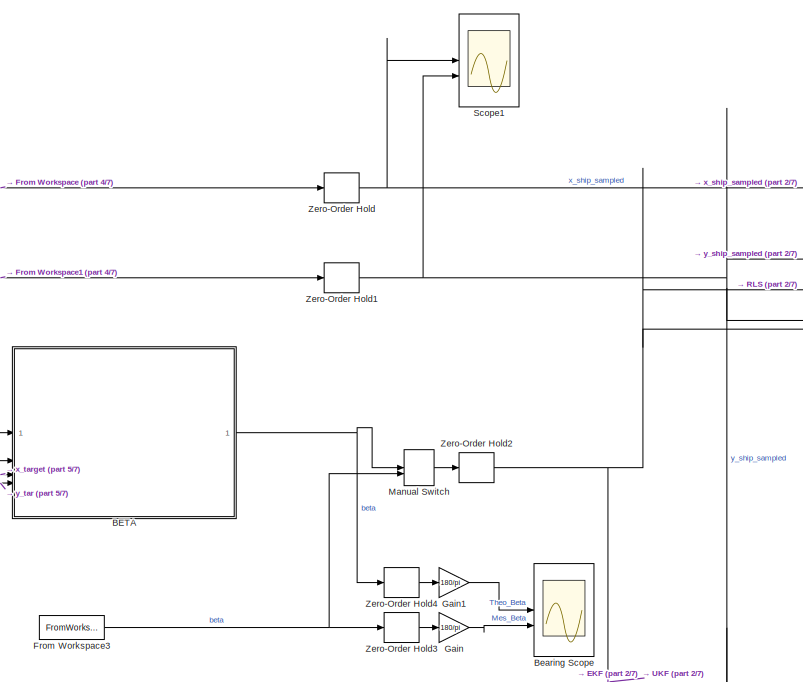
[diagram: root canvas - part 1/7, top center region]
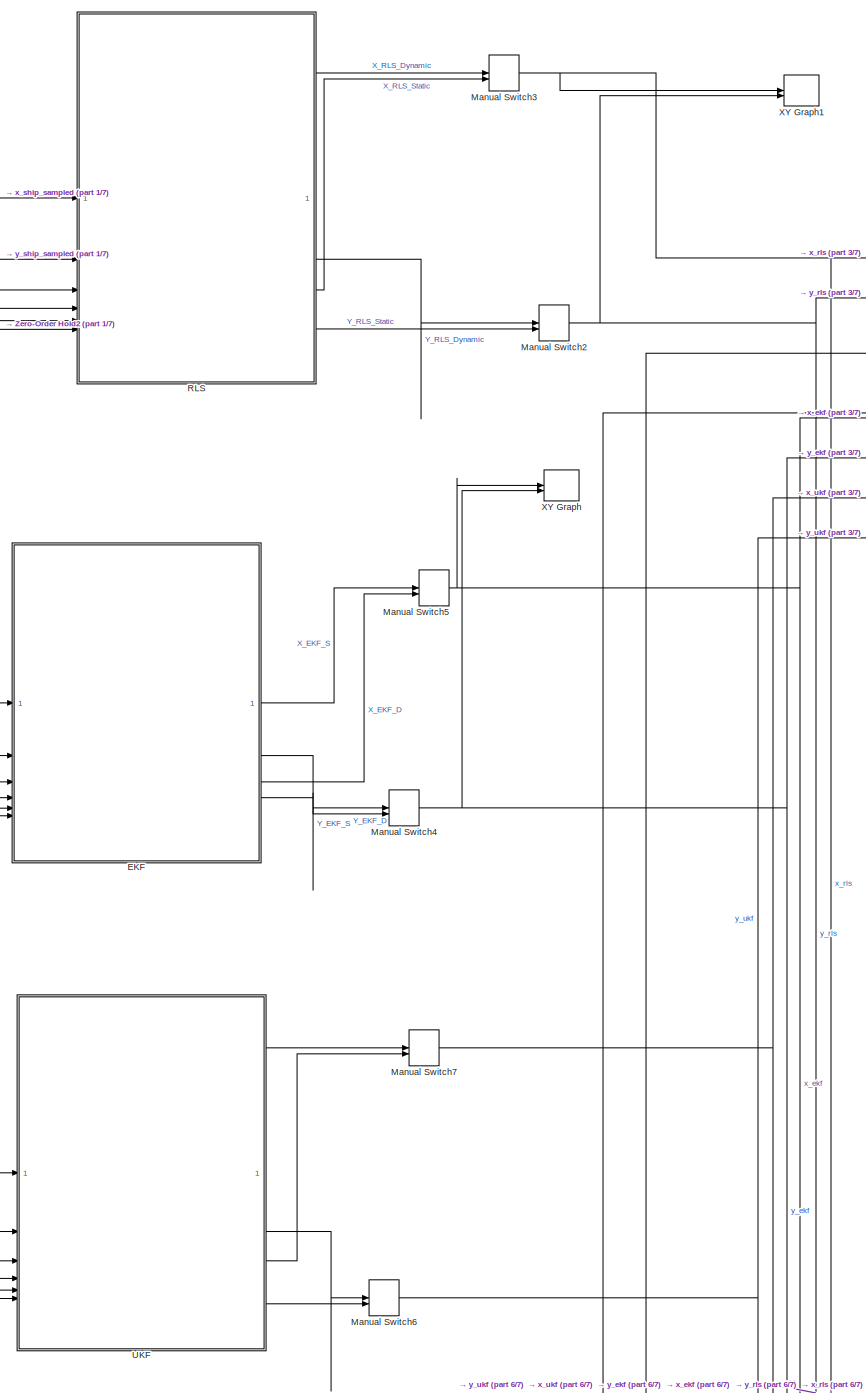
[diagram: root canvas - part 2/7, center side, full height]
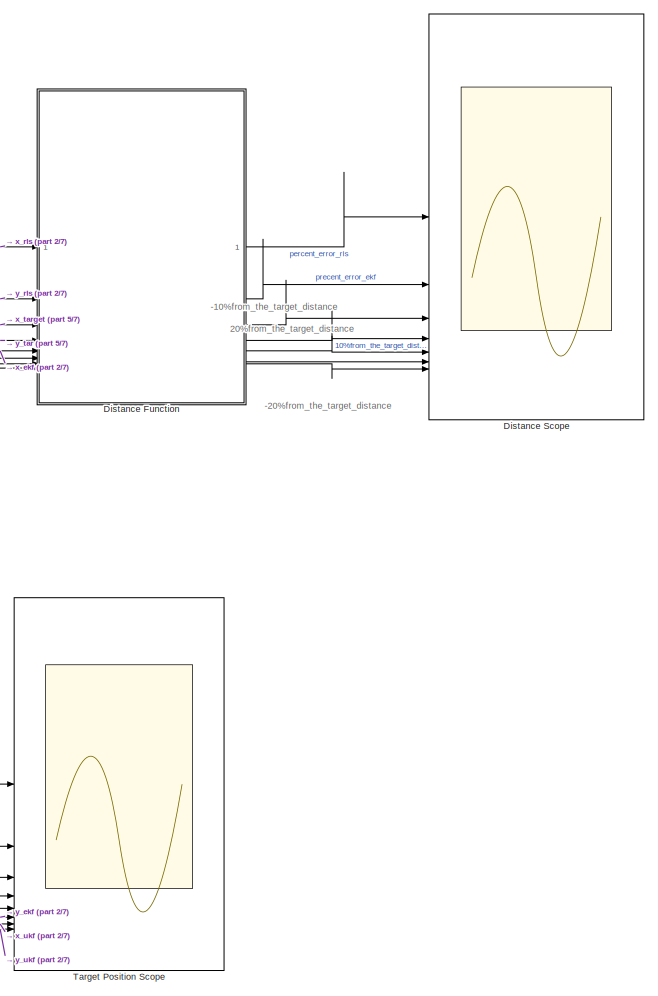
[diagram: root canvas - part 3/7, middle right region]
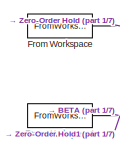
[diagram: root canvas - part 4/7, top left region]
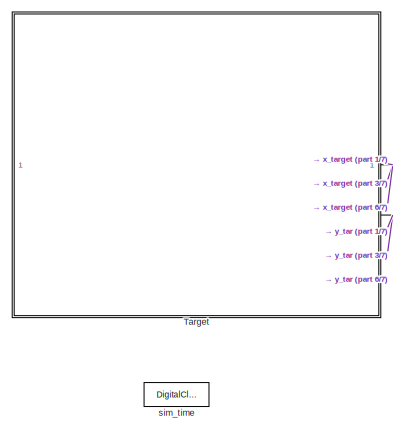
[diagram: root canvas - part 5/7, middle left region]
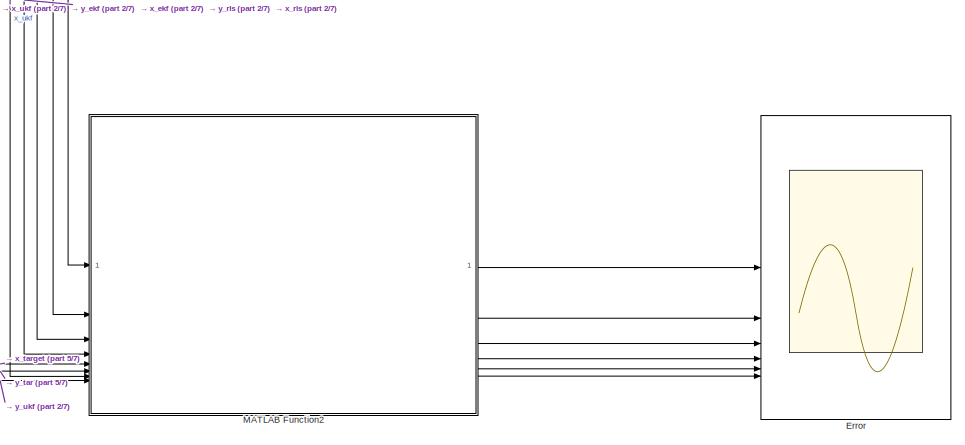
[diagram: root canvas - part 6/7, bottom right region]
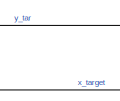
[diagram: root canvas - part 7/7, bottom center region]
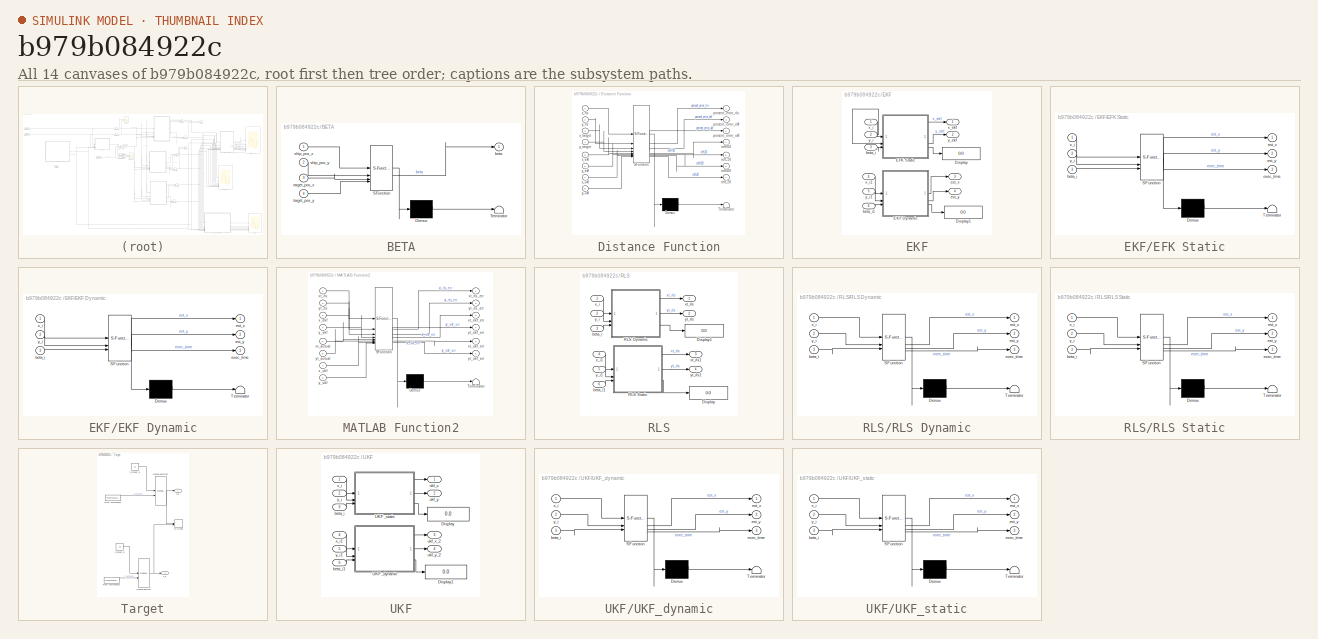
[diagram: thumbnail index - all 14 canvases of the model, root first then tree order]
MODEL slx_b979b084922c
KIND model
CONFIG AbsTol = auto
CONFIG EnableMultiTasking = off
CONFIG FixedStep = auto
CONFIG InitFcn = dt=1;
CONFIG MaxStep = auto
CONFIG MinStep = auto
CONFIG RelTol = 1e-3
CONFIG SampleTimeConstraint = Unconstrained
CONFIG SolverName = VariableStepAuto
CONFIG StartTime = 0.0
CONFIG StopTime = 300
BLOCK [Scope]  Bearing Scope
  Floating = off
  NumInputPorts = 2
  ScopeSpecificationString = Simulink.scopes.TimeScopeBlockCfg('CurrentConfiguration', extmgr.ConfigurationSet(extmgr.Configuration('Core','General UI',true),extmgr.Configuration('Core','Source UI',true),extmgr.Configuration('Sources','WiredSimulink',true,'DataLoggingVariableName','ScopeData1','SampleTime','dt'),extmgr.Configuration('Visuals','Time Domain',true,'SerializedDisplays',{struct('MinYLimReal','-306454.75815','MaxYL...<+1784ch>
BLOCK [Scope]  Scope1
  Floating = off
  NumInputPorts = 2
  ScopeSpecificationString = Simulink.scopes.TimeScopeBlockCfg('CurrentConfiguration', extmgr.ConfigurationSet(extmgr.Configuration('Core','General UI',true),extmgr.Configuration('Core','Source UI',true),extmgr.Configuration('Sources','WiredSimulink',true,'DataLoggingVariableName','ScopeData1','SampleTime','dt'),extmgr.Configuration('Visuals','Time Domain',true,'SerializedDisplays',{struct('MinYLimReal','-4.77533','MaxYLimRea...<+1757ch>
BLOCK [SubSystem] BETA
  ErrorFcn = Stateflow.Translate.translate
  PermitHierarchicalResolution = ExplicitOnly
  SFBlockType = MATLAB Function
  TreatAsAtomicUnit = on
BLOCK [Demux] BETA/ Demux 
  Outputs = 1
BLOCK [S-Function] BETA/ SFunction 
  EnableBusSupport = on
  FunctionName = sf_sfun
  PortCounts = [4 2]
  SFcnIsStateOwnerBlock = off
  SFunctionDeploymentMode = off
  Tag = Stateflow S-Function 5
BLOCK [Terminator] BETA/ Terminator 
BLOCK [Outport] BETA/beta
BLOCK [Inport] BETA/ship_pos_x
BLOCK [Inport] BETA/ship_pos_y
  Port = 2
BLOCK [Inport] BETA/target_pos_x
  Port = 3
BLOCK [Inport] BETA/target_pos_y
  Port = 4
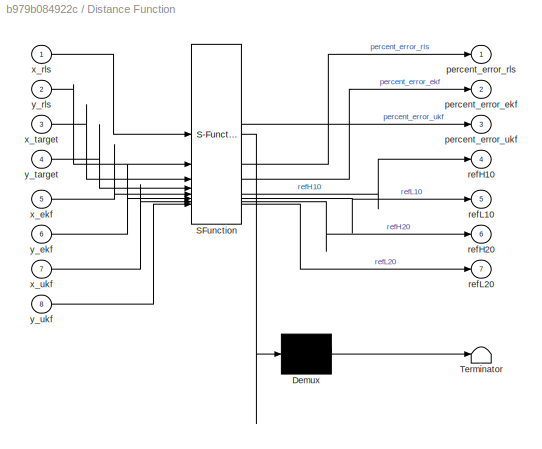
BLOCK [SubSystem] Distance Function
  ErrorFcn = Stateflow.Translate.translate
  PermitHierarchicalResolution = ExplicitOnly
  SFBlockType = MATLAB Function
  TreatAsAtomicUnit = on
BLOCK [Demux] Distance Function/ Demux 
  Outputs = 1
BLOCK [S-Function] Distance Function/ SFunction 
  EnableBusSupport = on
  FunctionName = sf_sfun
  PortCounts = [8 8]
  SFcnIsStateOwnerBlock = off
  SFunctionDeploymentMode = off
  Tag = Stateflow S-Function 10
BLOCK [Terminator] Distance Function/ Terminator 
BLOCK [Outport] Distance Function/percent_error_ekf
  Port = 2
BLOCK [Outport] Distance Function/percent_error_rls
BLOCK [Outport] Distance Function/percent_error_ukf
  Port = 3
BLOCK [Outport] Distance Function/refH10
  Port = 4
BLOCK [Outport] Distance Function/refH20
  Port = 6
BLOCK [Outport] Distance Function/refL10
  Port = 5
BLOCK [Outport] Distance Function/refL20
  Port = 7
BLOCK [Inport] Distance Function/x_ekf
  Port = 5
BLOCK [Inport] Distance Function/x_rls
BLOCK [Inport] Distance Function/x_target
  Port = 3
BLOCK [Inport] Distance Function/x_ukf
  Port = 7
BLOCK [Inport] Distance Function/y_ekf
  Port = 6
BLOCK [Inport] Distance Function/y_rls
  Port = 2
BLOCK [Inport] Distance Function/y_target
  Port = 4
BLOCK [Inport] Distance Function/y_ukf
  Port = 8
BLOCK [Scope] Distance Scope
  Floating = off
  NumInputPorts = 7
  ScopeSpecificationString = Simulink.scopes.TimeScopeBlockCfg('CurrentConfiguration', extmgr.ConfigurationSet(extmgr.Configuration('Core','General UI',true,'FigureColor',[1 1 1]),extmgr.Configuration('Core','Source UI',true),extmgr.Configuration('Sources','WiredSimulink',true,'DataLoggingVariableName','ScopeData1'),extmgr.Configuration('Visuals','Time Domain',true,'SerializedDisplays',{struct('MinYLimReal','-31.4524','MaxYLi...<+2185ch>
BLOCK [SubSystem] EKF
BLOCK [Display] EKF/Display
  Decimation = 1
BLOCK [Display] EKF/Display1
  Decimation = 1
BLOCK [SubSystem] EKF/EFK Static
  ErrorFcn = Stateflow.Translate.translate
  PermitHierarchicalResolution = ExplicitOnly
  SFBlockType = MATLAB Function
  TreatAsAtomicUnit = on
BLOCK [Demux] EKF/EFK Static/ Demux 
  Outputs = 1
BLOCK [S-Function] EKF/EFK Static/ SFunction 
  EnableBusSupport = on
  FunctionName = sf_sfun
  PortCounts = [3 4]
  SFcnIsStateOwnerBlock = off
  SFunctionDeploymentMode = off
  Tag = Stateflow S-Function 6
BLOCK [Terminator] EKF/EFK Static/ Terminator 
BLOCK [Inport] EKF/EFK Static/beta_i
  Port = 3
BLOCK [Outport] EKF/EFK Static/est_x
BLOCK [Outport] EKF/EFK Static/est_y
  Port = 2
BLOCK [Outport] EKF/EFK Static/exec_time
  Port = 3
BLOCK [Inport] EKF/EFK Static/x_i
BLOCK [Inport] EKF/EFK Static/y_i
  Port = 2
BLOCK [SubSystem] EKF/EKF Dynamic
  ErrorFcn = Stateflow.Translate.translate
  PermitHierarchicalResolution = ExplicitOnly
  SFBlockType = MATLAB Function
  TreatAsAtomicUnit = on
BLOCK [Demux] EKF/EKF Dynamic/ Demux 
  Outputs = 1
BLOCK [S-Function] EKF/EKF Dynamic/ SFunction 
  EnableBusSupport = on
  FunctionName = sf_sfun
  PortCounts = [3 4]
  SFcnIsStateOwnerBlock = off
  SFunctionDeploymentMode = off
  Tag = Stateflow S-Function 7
BLOCK [Terminator] EKF/EKF Dynamic/ Terminator 
BLOCK [Inport] EKF/EKF Dynamic/beta_i
  Port = 3
BLOCK [Outport] EKF/EKF Dynamic/est_x
BLOCK [Outport] EKF/EKF Dynamic/est_y
  Port = 2
BLOCK [Outport] EKF/EKF Dynamic/exec_time
  Port = 3
BLOCK [Inport] EKF/EKF Dynamic/x_i
BLOCK [Inport] EKF/EKF Dynamic/y_i
  Port = 2
BLOCK [Inport] EKF/beta_i
  Port = 3
BLOCK [Inport] EKF/beta_i1
  Port = 6
BLOCK [Outport] EKF/est_x
  Port = 3
BLOCK [Outport] EKF/est_y
  Port = 4
BLOCK [Outport] EKF/x_ekf
BLOCK [Inport] EKF/x_i
BLOCK [Inport] EKF/x_i1
  Port = 4
BLOCK [Outport] EKF/y_ekf
  Port = 2
BLOCK [Inport] EKF/y_i
  Port = 2
BLOCK [Inport] EKF/y_i1
  Port = 5
BLOCK [Scope] Error
  Description = error
  Floating = off
  NumInputPorts = 6
  ScopeSpecificationString = Simulink.scopes.TimeScopeBlockCfg('CurrentConfiguration', extmgr.ConfigurationSet(extmgr.Configuration('Core','General UI',true),extmgr.Configuration('Core','Source UI',true),extmgr.Configuration('Sources','WiredSimulink',true,'DataLoggingVariableName','ScopeData2'),extmgr.Configuration('Visuals','Time Domain',true,'SerializedDisplays',{struct('MinYLimReal','-133.62571','MaxYLimReal','67.21279','Y...<+1824ch>
BLOCK [FromWorkspace] From Workspace
  SampleTime = 0.001
  VariableName = TT_X_inf
BLOCK [FromWorkspace] From Workspace1
  SampleTime = 0.001
  VariableName = TT_Y_inf
BLOCK [FromWorkspace] From Workspace3
  VariableName = TT_Bearing_Inf_Scaled
BLOCK [Gain] Gain
  Gain = 180/pi
BLOCK [Gain] Gain1
  Gain = 180/pi
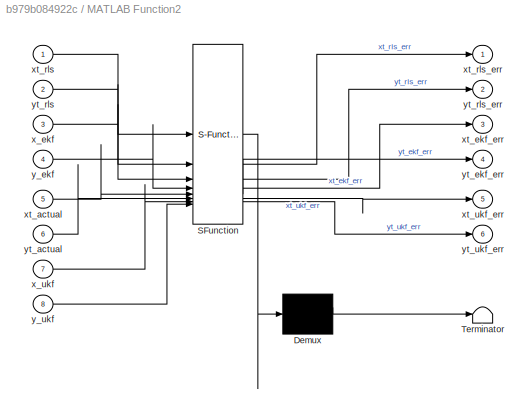
BLOCK [SubSystem] MATLAB Function2
  ErrorFcn = Stateflow.Translate.translate
  PermitHierarchicalResolution = ExplicitOnly
  SFBlockType = MATLAB Function
  TreatAsAtomicUnit = on
BLOCK [Demux] MATLAB Function2/ Demux 
  Outputs = 1
BLOCK [S-Function] MATLAB Function2/ SFunction 
  EnableBusSupport = on
  FunctionName = sf_sfun
  PortCounts = [8 7]
  SFcnIsStateOwnerBlock = off
  SFunctionDeploymentMode = off
  Tag = Stateflow S-Function 12
BLOCK [Terminator] MATLAB Function2/ Terminator 
BLOCK [Inport] MATLAB Function2/x_ekf
  Port = 3
BLOCK [Inport] MATLAB Function2/x_ukf
  Port = 7
BLOCK [Inport] MATLAB Function2/xt_actual
  Port = 5
BLOCK [Outport] MATLAB Function2/xt_ekf_err
  Port = 3
BLOCK [Inport] MATLAB Function2/xt_rls
BLOCK [Outport] MATLAB Function2/xt_rls_err
BLOCK [Outport] MATLAB Function2/xt_ukf_err
  Port = 5
BLOCK [Inport] MATLAB Function2/y_ekf
  Port = 4
BLOCK [Inport] MATLAB Function2/y_ukf
  Port = 8
BLOCK [Inport] MATLAB Function2/yt_actual
  Port = 6
BLOCK [Outport] MATLAB Function2/yt_ekf_err
  Port = 4
BLOCK [Inport] MATLAB Function2/yt_rls
  Port = 2
BLOCK [Outport] MATLAB Function2/yt_rls_err
  Port = 2
BLOCK [Outport] MATLAB Function2/yt_ukf_err
  Port = 6
BLOCK [ManualSwitch] Manual Switch
  CurrentSetting = 0
BLOCK [ManualSwitch] Manual Switch2
BLOCK [ManualSwitch] Manual Switch3
BLOCK [ManualSwitch] Manual Switch4
  CurrentSetting = 0
BLOCK [ManualSwitch] Manual Switch5
  CurrentSetting = 0
BLOCK [ManualSwitch] Manual Switch6
  CurrentSetting = 0
BLOCK [ManualSwitch] Manual Switch7
  CurrentSetting = 0
BLOCK [SubSystem] RLS
BLOCK [Display] RLS/Display
  Decimation = 1
BLOCK [Display] RLS/Display1
  Decimation = 1
BLOCK [SubSystem] RLS/RLS Dynamic
  ErrorFcn = Stateflow.Translate.translate
  PermitHierarchicalResolution = ExplicitOnly
  SFBlockType = MATLAB Function
  TreatAsAtomicUnit = on
BLOCK [Demux] RLS/RLS Dynamic/ Demux 
  Outputs = 1
BLOCK [S-Function] RLS/RLS Dynamic/ SFunction 
  EnableBusSupport = on
  FunctionName = sf_sfun
  PortCounts = [3 4]
  SFcnIsStateOwnerBlock = off
  SFunctionDeploymentMode = off
  Tag = Stateflow S-Function 8
BLOCK [Terminator] RLS/RLS Dynamic/ Terminator 
BLOCK [Inport] RLS/RLS Dynamic/beta_i
  Port = 3
BLOCK [Outport] RLS/RLS Dynamic/est_x
BLOCK [Outport] RLS/RLS Dynamic/est_y
  Port = 2
BLOCK [Outport] RLS/RLS Dynamic/exec_time
  Port = 3
BLOCK [Inport] RLS/RLS Dynamic/x_i
BLOCK [Inport] RLS/RLS Dynamic/y_i
  Port = 2
BLOCK [SubSystem] RLS/RLS Static
  ErrorFcn = Stateflow.Translate.translate
  PermitHierarchicalResolution = ExplicitOnly
  SFBlockType = MATLAB Function
  TreatAsAtomicUnit = on
BLOCK [Demux] RLS/RLS Static/ Demux 
  Outputs = 1
BLOCK [S-Function] RLS/RLS Static/ SFunction 
  EnableBusSupport = on
  FunctionName = sf_sfun
  PortCounts = [3 4]
  SFcnIsStateOwnerBlock = off
  SFunctionDeploymentMode = off
  Tag = Stateflow S-Function 9
BLOCK [Terminator] RLS/RLS Static/ Terminator 
BLOCK [Inport] RLS/RLS Static/beta_i
  Port = 3
BLOCK [Outport] RLS/RLS Static/est_x
BLOCK [Outport] RLS/RLS Static/est_y
  Port = 2
BLOCK [Outport] RLS/RLS Static/exec_time
  Port = 3
BLOCK [Inport] RLS/RLS Static/x_i
BLOCK [Inport] RLS/RLS Static/y_i
  Port = 2
BLOCK [Inport] RLS/beta_i
  Port = 3
BLOCK [Inport] RLS/beta_i1
  Port = 6
BLOCK [Inport] RLS/x_i
BLOCK [Inport] RLS/x_i1
  Port = 4
BLOCK [Outport] RLS/xt_rls
BLOCK [Outport] RLS/xt_rls1
  Port = 3
BLOCK [Inport] RLS/y_i
  Port = 2
BLOCK [Inport] RLS/y_i1
  Port = 5
BLOCK [Outport] RLS/yt_rls
  Port = 2
BLOCK [Outport] RLS/yt_rls1
  Port = 4
BLOCK [SubSystem] Target
BLOCK [Scope] Target Position Scope
  Floating = off
  NumInputPorts = 8
  ScopeSpecificationString = Simulink.scopes.TimeScopeBlockCfg('CurrentConfiguration', extmgr.ConfigurationSet(extmgr.Configuration('Core','General UI',true,'FigureColor',[1 1 1]),extmgr.Configuration('Core','Source UI',true),extmgr.Configuration('Sources','WiredSimulink',true,'DataLoggingVariableName','ScopeData3'),extmgr.Configuration('Visuals','Time Domain',true,'SerializedDisplays',{struct('MinYLimReal','-16.72004','MaxYL...<+2569ch>
BLOCK [FromWorkspace] Target/From Workspace
  VariableName = TT_X_inf_target
BLOCK [FromWorkspace] Target/From Workspace1
  VariableName = TT_Y_inf_target
BLOCK [ManualSwitch] Target/Manual Switch10
  CurrentSetting = 0
BLOCK [ManualSwitch] Target/Manual Switch2
  CurrentSetting = 0
BLOCK [Record] Target/XY Graph
  CompatibilityTag = XY
  FileSettingsInternal = {"entries":[{"content":{"excelSettings":{"content":{},"type":"Streamout.ExcelSettings"}},"type":"Streamout.FileSettingStorage","uuid":""}],"packageUris":["http:\/\/schema.mathworks.com\/mf0\/streamout_blocks\/R2020a"],"version":"1.0"}  <repeated x3 — deduplicated; at blocks: XY Graph, XY Graph1>
  Layout = [1 1]
  SignalsInternal = {"entries":[{"content":{"signals":[{"content":{"blockPath":[],"dimensions":[1],"domain":"","lineColor":"#a2142f","plots":[ 1 ],"port":1,"signalID":1,"signalName":"Manual Switch10"},"type":"RecordBlkView.Signal","uuid":""},{"content":{"blockPath":[],"dimensions":[1],"domain":"","lineColor":"#139fff","plots":[ 1 ],"port":2,"signalID":2,"signalName":"Manual Switch2"},"type":"RecordBlkView.Signal","uu...<+153ch>
  VisualizationBindings = {"xyplotplugin":{"info":[{"series":[{"bindingParametersList":[{"parameter":"X-Axis","signalID":1,"signalName":"Manual Switch10"},{"parameter":"Y-Axis","signalID":2,"signalName":"Manual Switch2"}],"seriesID":0}],"subplotID":1}]}}
BLOCK [Outport] Target/x_i1
BLOCK [Constant] Target/x_target_S
  Value = 22
BLOCK [Outport] Target/y_i1
  Port = 2
BLOCK [Constant] Target/y_target_S
  Value = -19
BLOCK [SubSystem] UKF
BLOCK [Display] UKF/Display
  Decimation = 1
BLOCK [Display] UKF/Display1
  Decimation = 1
BLOCK [SubSystem] UKF/UKF_dynamic
  ErrorFcn = Stateflow.Translate.translate
  PermitHierarchicalResolution = ExplicitOnly
  SFBlockType = MATLAB Function
  TreatAsAtomicUnit = on
BLOCK [Demux] UKF/UKF_dynamic/ Demux 
  Outputs = 1
BLOCK [S-Function] UKF/UKF_dynamic/ SFunction 
  EnableBusSupport = on
  FunctionName = sf_sfun
  PortCounts = [3 4]
  SFcnIsStateOwnerBlock = off
  SFunctionDeploymentMode = off
  Tag = Stateflow S-Function 14
BLOCK [Terminator] UKF/UKF_dynamic/ Terminator 
BLOCK [Inport] UKF/UKF_dynamic/beta_i
  Port = 3
BLOCK [Outport] UKF/UKF_dynamic/est_x
BLOCK [Outport] UKF/UKF_dynamic/est_y
  Port = 2
BLOCK [Outport] UKF/UKF_dynamic/exec_time
  Port = 3
BLOCK [Inport] UKF/UKF_dynamic/x_i
BLOCK [Inport] UKF/UKF_dynamic/y_i
  Port = 2
BLOCK [SubSystem] UKF/UKF_static
  ErrorFcn = Stateflow.Translate.translate
  PermitHierarchicalResolution = ExplicitOnly
  SFBlockType = MATLAB Function
  TreatAsAtomicUnit = on
BLOCK [Demux] UKF/UKF_static/ Demux 
  Outputs = 1
BLOCK [S-Function] UKF/UKF_static/ SFunction 
  EnableBusSupport = on
  FunctionName = sf_sfun
  PortCounts = [3 4]
  SFcnIsStateOwnerBlock = off
  SFunctionDeploymentMode = off
  Tag = Stateflow S-Function 13
BLOCK [Terminator] UKF/UKF_static/ Terminator 
BLOCK [Inport] UKF/UKF_static/beta_i
  Port = 3
BLOCK [Outport] UKF/UKF_static/est_x
BLOCK [Outport] UKF/UKF_static/est_y
  Port = 2
BLOCK [Outport] UKF/UKF_static/exec_time
  Port = 3
BLOCK [Inport] UKF/UKF_static/x_i
BLOCK [Inport] UKF/UKF_static/y_i
  Port = 2
BLOCK [Inport] UKF/beta_i
  Port = 3
BLOCK [Inport] UKF/beta_i1
  Port = 6
BLOCK [Outport] UKF/ukf_x
BLOCK [Outport] UKF/ukf_x_2
  Port = 3
BLOCK [Outport] UKF/ukf_y
  Port = 2
BLOCK [Outport] UKF/ukf_y_2
  Port = 4
BLOCK [Inport] UKF/x_i
BLOCK [Inport] UKF/x_i1
  Port = 4
BLOCK [Inport] UKF/y_i
  Port = 2
BLOCK [Inport] UKF/y_i1
  Port = 5
BLOCK [Record] XY Graph
  CompatibilityTag = XY
  Layout = [1 1]
  SignalsInternal = {"entries":[{"content":{"signals":[{"content":{"blockPath":[],"dimensions":[1],"domain":"","lineColor":"#a2142f","plots":[ 1 ],"port":1,"signalID":1,"signalName":"x_ekf"},"type":"RecordBlkView.Signal","uuid":""},{"content":{"blockPath":[],"dimensions":[1],"domain":"","lineColor":"#139fff","plots":[ 1 ],"port":2,"signalID":2,"signalName":"y_ekf"},"type":"RecordBlkView.Signal","uuid":""}]},"type":"R...<+134ch>
  VisualizationBindings = {"xyplotplugin":{"info":[{"series":[{"bindingParametersList":[{"parameter":"X-Axis","signalID":1,"signalName":"x_ekf"},{"parameter":"Y-Axis","signalID":2,"signalName":"y_ekf"}],"seriesID":0}],"subplotID":1}]}}
BLOCK [Record] XY Graph1
  CompatibilityTag = XY
  Layout = [1 1]
  SignalsInternal = {"entries":[{"content":{"signals":[{"content":{"blockPath":[],"dimensions":[1],"domain":"","lineColor":"#a2142f","plots":[ 1 ],"port":1,"signalID":1,"signalName":"x_rls"},"type":"RecordBlkView.Signal","uuid":""},{"content":{"blockPath":[],"dimensions":[1],"domain":"","lineColor":"#139fff","plots":[ 1 ],"port":2,"signalID":2,"signalName":"y_rls"},"type":"RecordBlkView.Signal","uuid":""}]},"type":"R...<+134ch>
  VisualizationBindings = {"xyplotplugin":{"info":[{"series":[{"bindingParametersList":[{"parameter":"X-Axis","signalID":1,"signalName":"x_rls"},{"parameter":"Y-Axis","signalID":2,"signalName":"y_rls"}],"seriesID":0}],"subplotID":1}]}}
BLOCK [ZeroOrderHold] Zero-Order Hold
  SampleTime = dt
BLOCK [ZeroOrderHold] Zero-Order Hold1
BLOCK [ZeroOrderHold] Zero-Order Hold2
  SampleTime = 0.1
BLOCK [ZeroOrderHold] Zero-Order Hold3
BLOCK [ZeroOrderHold] Zero-Order Hold4
BLOCK [DigitalClock] sim_time
ANNOTATION (root): -10%from_the_target_distance
ANNOTATION (root): -20%from_the_target_distance
ANNOTATION (root): 20%from_the_target_distance
NET BETA:1 -> Manual Switch:1, Zero-Order Hold4:1
LINE Distance Function:1 -> Distance Scope:1
LINE Distance Function:2 -> Distance Scope:2
LINE Distance Function:3 -> Distance Scope:3
LINE Distance Function:4 -> Distance Scope:4
LINE Distance Function:5 -> Distance Scope:5
LINE Distance Function:6 -> Distance Scope:6
LINE Distance Function:7 -> Distance Scope:7
LINE EKF/EFK Static:1 -> EKF/x_ekf:1
LINE EKF/EFK Static:2 -> EKF/y_ekf:1
LINE EKF/EFK Static:3 -> EKF/Display:1
LINE EKF/EKF Dynamic:1 -> EKF/est_x:1
LINE EKF/EKF Dynamic:2 -> EKF/est_y:1
LINE EKF/EKF Dynamic:3 -> EKF/Display1:1
LINE EKF/beta_i1:1 -> EKF/EKF Dynamic:3
LINE EKF/beta_i:1 -> EKF/EFK Static:3
LINE EKF/x_i1:1 -> EKF/EKF Dynamic:1
LINE EKF/x_i:1 -> EKF/EFK Static:1
LINE EKF/y_i1:1 -> EKF/EKF Dynamic:2
LINE EKF/y_i:1 -> EKF/EFK Static:2
LINE EKF:1 -> Manual Switch5:1
LINE EKF:2 -> Manual Switch4:1
LINE EKF:3 -> Manual Switch5:2
LINE EKF:4 -> Manual Switch4:2
NET From Workspace1:1 -> BETA:2, Zero-Order Hold1:1
NET From Workspace3:1 -> Manual Switch:2, Zero-Order Hold3:1
NET From Workspace:1 -> BETA:1, Zero-Order Hold:1
LINE Gain1:1 ->  Bearing Scope:1
LINE Gain:1 ->  Bearing Scope:2
LINE MATLAB Function2:1 -> Error:1
LINE MATLAB Function2:2 -> Error:2
LINE MATLAB Function2:3 -> Error:3
LINE MATLAB Function2:4 -> Error:4
LINE MATLAB Function2:5 -> Error:5
LINE MATLAB Function2:6 -> Error:6
NET Manual Switch2:1 -> Distance Function:2, MATLAB Function2:2, Target Position Scope:2, XY Graph1:2
NET Manual Switch3:1 -> Distance Function:1, MATLAB Function2:1, Target Position Scope:1, XY Graph1:1
NET Manual Switch4:1 -> Distance Function:6, MATLAB Function2:4, Target Position Scope:6, XY Graph:2
NET Manual Switch5:1 -> Distance Function:5, MATLAB Function2:3, Target Position Scope:5, XY Graph:1
NET Manual Switch6:1 -> Distance Function:8, MATLAB Function2:8, Target Position Scope:8
NET Manual Switch7:1 -> Distance Function:7, MATLAB Function2:7, Target Position Scope:7
LINE Manual Switch:1 -> Zero-Order Hold2:1
LINE RLS/RLS Dynamic:1 -> RLS/xt_rls:1
LINE RLS/RLS Dynamic:2 -> RLS/yt_rls:1
LINE RLS/RLS Dynamic:3 -> RLS/Display1:1
LINE RLS/RLS Static:1 -> RLS/xt_rls1:1
LINE RLS/RLS Static:2 -> RLS/yt_rls1:1
LINE RLS/RLS Static:3 -> RLS/Display:1
LINE RLS/beta_i1:1 -> RLS/RLS Static:3
LINE RLS/beta_i:1 -> RLS/RLS Dynamic:3
LINE RLS/x_i1:1 -> RLS/RLS Static:1
LINE RLS/x_i:1 -> RLS/RLS Dynamic:1
LINE RLS/y_i1:1 -> RLS/RLS Static:2
LINE RLS/y_i:1 -> RLS/RLS Dynamic:2
LINE RLS:1 -> Manual Switch3:1
LINE RLS:2 -> Manual Switch2:1
LINE RLS:3 -> Manual Switch3:2
LINE RLS:4 -> Manual Switch2:2
LINE Target/From Workspace1:1 -> Target/Manual Switch2:2
LINE Target/From Workspace:1 -> Target/Manual Switch10:2
NET Target/Manual Switch10:1 -> Target/XY Graph:1, Target/x_i1:1
NET Target/Manual Switch2:1 -> Target/XY Graph:2, Target/y_i1:1
LINE Target/x_target_S:1 -> Target/Manual Switch10:1
LINE Target/y_target_S:1 -> Target/Manual Switch2:1
NET Target:1 -> BETA:3, Distance Function:3, MATLAB Function2:5, Target Position Scope:3
NET Target:2 -> BETA:4, Distance Function:4, MATLAB Function2:6, Target Position Scope:4
LINE UKF/UKF_dynamic:1 -> UKF/ukf_x_2:1
LINE UKF/UKF_dynamic:2 -> UKF/ukf_y_2:1
LINE UKF/UKF_dynamic:3 -> UKF/Display1:1
LINE UKF/UKF_static:1 -> UKF/ukf_x:1
LINE UKF/UKF_static:2 -> UKF/ukf_y:1
LINE UKF/UKF_static:3 -> UKF/Display:1
LINE UKF/beta_i1:1 -> UKF/UKF_dynamic:3
LINE UKF/beta_i:1 -> UKF/UKF_static:3
LINE UKF/x_i1:1 -> UKF/UKF_dynamic:1
LINE UKF/x_i:1 -> UKF/UKF_static:1
LINE UKF/y_i1:1 -> UKF/UKF_dynamic:2
LINE UKF/y_i:1 -> UKF/UKF_static:2
LINE UKF:1 -> Manual Switch7:1
LINE UKF:2 -> Manual Switch6:1
LINE UKF:3 -> Manual Switch7:2
LINE UKF:4 -> Manual Switch6:2
NET Zero-Order Hold1:1 ->  Scope1:2, EKF:2, EKF:5, RLS:2, RLS:5, UKF:2, UKF:5
NET Zero-Order Hold2:1 -> EKF:3, EKF:6, RLS:3, RLS:6, UKF:3, UKF:6
LINE Zero-Order Hold3:1 -> Gain:1
LINE Zero-Order Hold4:1 -> Gain1:1
NET Zero-Order Hold:1 ->  Scope1:1, EKF:1, EKF:4, RLS:1, RLS:4, UKF:1, UKF:4
note: NET lines group one-source signal fan-out (src -> all destinations, sorted); 1:1 wires keep LINE
CHART UKF/UKF_static states=1 transitions=1
  STATE_LABEL 'eML_blk_kernel()'
  STATE_LABEL "SCRIPT:\nfunction [est_x, est_y, exec_time] = ukf_fcn(x_i, y_i, beta_i)\n\npersistent X_i P Q R lambda alpha beta nx\n\n% Initialize execution time variable  \nexec_time = 0; % Ensures fixed-size output for Simulink compatibility  \n\n% Start timing  \ncoder.extrinsic('tic', 'toc'); % Allows tic/toc in Simulink  \ntStart = tic; % Capture start time \n\nif isempty(P)\n    nx = 6; % State dimension\n    P = 1000*...<+3014ch>"
CHART UKF/UKF_dynamic states=1 transitions=1
  STATE_LABEL 'eML_blk_kernel()'
  STATE_LABEL "SCRIPT:\nfunction [est_x, est_y, exec_time] = ukf_dynamic_fcn(x_i, y_i, beta_i)\n\npersistent X_i P Q R lambda alpha beta nx\n\n% Initialize execution time variable  \nexec_time = 0; % Ensures fixed-size output for Simulink compatibility  \n\n% Start timing  \ncoder.extrinsic('tic', 'toc'); % Allows tic/toc in Simulink  \ntStart = tic; % Capture start time  \n\nif isempty(P)\n    nx = 8; % State dimension for ...<+3164ch>"
CHART BETA states=1 transitions=1
  STATE_LABEL 'eML_blk_kernel()'
  STATE_LABEL 'SCRIPT:\nfunction beta = fcn(ship_pos_x,ship_pos_y,target_pos_x,target_pos_y)\n% Calculation of the horizontal distance (dx) between the target and the ship\n\n% Calculation of the horizontal distance (dx) between the target and the ship\ndx = target_pos_x - ship_pos_x;\n\n% Calculation of the vertical distance (dy) between the target and the ship\ndy = target_pos_y - ship_pos_y;\n\n% atan2(dy, dx) returns ...<+70ch>'
CHART EKF/EFK Static states=1 transitions=1
  STATE_LABEL 'eML_blk_kernel()'
  STATE_LABEL "SCRIPT:\nfunction [est_x, est_y, exec_time] = ekf_fcn(x_i, y_i, beta_i)\n\npersistent X_i P Q R\n\n% Initialize execution time variable  \nexec_time = 0; % Ensures fixed-size output for Simulink compatibility  \n\n% Start timing  \ncoder.extrinsic('tic', 'toc'); % Allows tic/toc in Simulink  \ntStart = tic; % Capture start time\n\nif isempty(P)\n    P = 1000*eye(6); % Covariance matrix initialization (6x6)\n   ...<+1042ch>"
CHART EKF/EKF Dynamic states=1 transitions=1
  STATE_LABEL 'eML_blk_kernel()'
  STATE_LABEL "SCRIPT:\nfunction [est_x, est_y, exec_time] = ekf_fcn(x_i, y_i, beta_i)\n\npersistent X_i P Q R\n\n% Initialize execution time variable  \nexec_time = 0; % Ensures fixed-size output for Simulink compatibility  \n\n% Start timing  \ncoder.extrinsic('tic', 'toc'); % Allows tic/toc in Simulink  \ntStart = tic; % Capture start time  \n\nif isempty(P)\n    P = 10*eye(8); % Covariance matrix initialization (8x8)\n   ...<+1122ch>"
CHART RLS/RLS Dynamic states=1 transitions=1
  STATE_LABEL 'eML_blk_kernel()'
  STATE_LABEL 'SCRIPT:\nfunction [est_x, est_y, exec_time] = fcn(x_i, y_i, beta_i) \n% FCN Perform recursive least squares (RLS) algorithm with a forgetting factor to estimate\n% the position of a target based on noisy measurements and angular data.\n% Outputs: est_x - Estimated x-coordinate of the target and est_y - Estimated y-coordinate of the target\n\n% Declartion of the persistent variables \npersistent P X_i lam...<+1520ch>'
CHART RLS/RLS Static states=1 transitions=1
  STATE_LABEL 'eML_blk_kernel()'
  STATE_LABEL 'SCRIPT:\nfunction [est_x, est_y, exec_time] = fcn(x_i, y_i, beta_i)  \n% FCN Perform recursive estimation for position using a RLS algorithm  \n% Outputs:  \n% - est_x: Estimated x-coordinate  \n% - est_y: Estimated y-coordinate  \n% - exec_time: Execution time (fixed-size double for Simulink compatibility)  \n\n% Declare persistent variables  \npersistent Q P X_i  \n\n% Initialize execution time variable  \n...<+1281ch>'
CHART Distance Function states=1 transitions=1
  STATE_LABEL 'eML_blk_kernel()'
  STATE_LABEL 'SCRIPT:\nfunction [percent_error_rls,percent_error_ekf,percent_error_ukf,refH10, refL10,refH20, refL20]= fcn(x_rls,y_rls,x_target,y_target, x_ekf, y_ekf,x_ukf, y_ukf)\n\n% Circle center\nxc = 5.5;\nyc = 1.5;\n\n% Circle radius\nr = 2.0;  \n% Normalized distances (radial distance from center)\ndistance_target = sqrt((x_target - xc)^2 + (y_target - yc)^2) / r;\ndistance_rls    = sqrt((x_rls    - xc)^2 + (y_rls...<+641ch>'
CHART MATLAB Function2 states=1 transitions=1
  STATE_LABEL 'eML_blk_kernel()'
  STATE_LABEL 'SCRIPT:\nfunction [xt_rls_err,yt_rls_err,xt_ekf_err,yt_ekf_err,xt_ukf_err,yt_ukf_err]   = fcn(xt_rls,yt_rls, x_ekf, y_ekf,xt_actual,yt_actual,x_ukf,y_ukf)\n% FCN Computes the percentage error for RLS and EKF position estimates\n\n% The percentage error for RLS estimates:\nxt_rls_err = ((xt_rls - xt_actual)/xt_actual)*100;\nyt_rls_err = ((yt_rls - yt_actual)/yt_actual)*100;\n\n% The percentage error for EK...<+216ch>'
CHART  states=0 transitions=0
CHART  states=0 transitions=0
CHART  states=0 transitions=0
CHART  states=0 transitions=0
CHART  states=0 transitions=0
CHART  states=0 transitions=0
CHART  states=0 transitions=0
CHART  states=0 transitions=0
CHART  states=0 transitions=0
